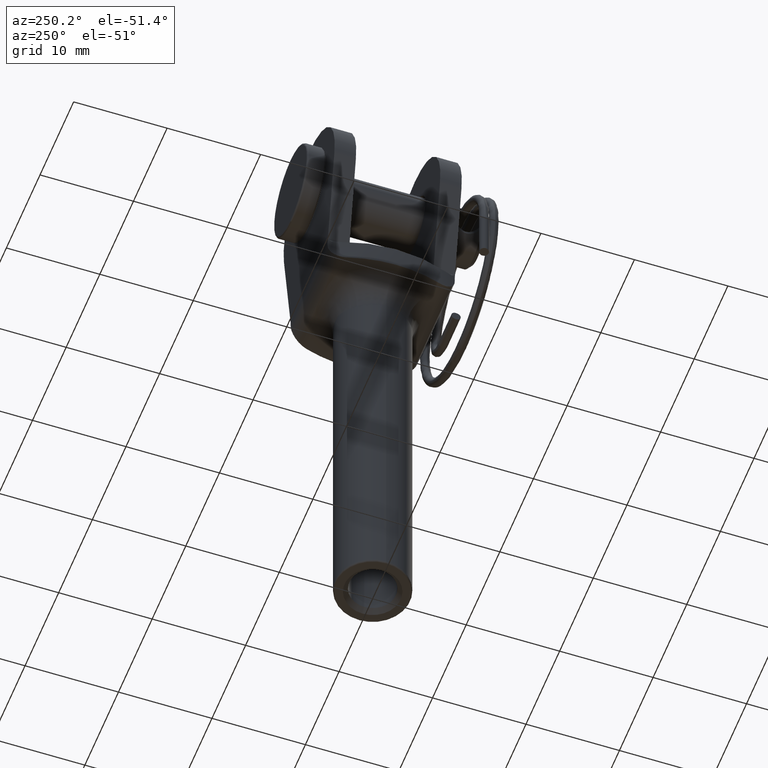
[diagram: clean part render]
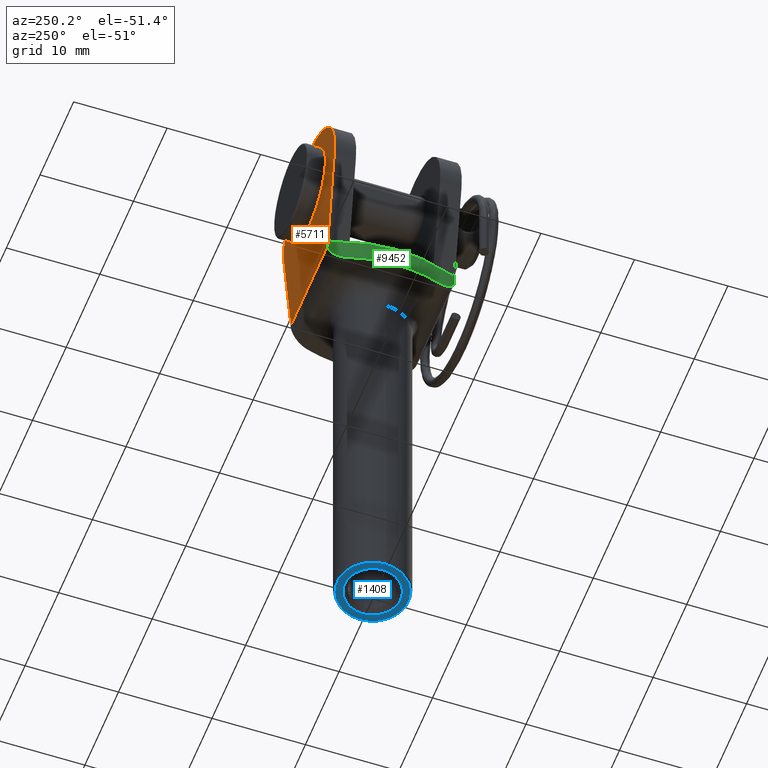
[diagram: same view with three faces highlighted in distinct colors, each labeled with its STEP entity id]
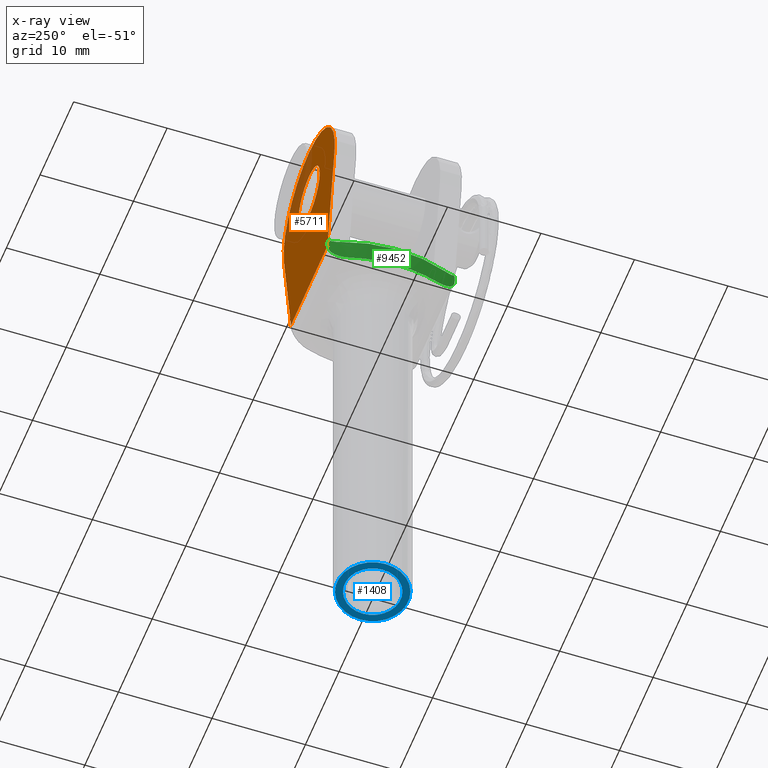
[diagram: x-ray of the same camera — body ghosted, the three highlighted faces saturated]
A machine part, auxiliary view with three faces highlighted in distinct colors.
The next image is the same camera in x-ray (body ghosted, the three faces saturated) — at least one of them is partly hidden behind the body in this view.
Their STEP definitions:

[orange] entity #5711 — the highlighted planar face has unit normal (0, -1, 0).
#85 = CARTESIAN_POINT ( 'NONE',  ( 5.500000000000000000, 6.799999999999999800, 9.302536199233404900E-016 ) ) ;
#111 = DIRECTION ( 'NONE',  ( 1.224646799147353200E-016, -0.0000000000000000000, 1.000000000000000000 ) ) ;
#608 = CARTESIAN_POINT ( 'NONE',  ( -7.499999999999998200, 6.799999999999999800, 12.16643967593877400 ) ) ;
#678 = EDGE_CURVE ( 'NONE', #9976, #17297, #2842, .T. ) ;
#774 = FACE_OUTER_BOUND ( 'NONE', #4033, .T. ) ;
#1115 = CIRCLE ( 'NONE', #6730, 3.150000000000001700 ) ;
#1591 = ORIENTED_EDGE ( 'NONE', *, *, #7113, .T. ) ;
#1632 = ORIENTED_EDGE ( 'NONE', *, *, #9719, .T. ) ;
#2357 = VECTOR ( 'NONE', #10010, 1000.000000000000000 ) ;
#2842 = CIRCLE ( 'NONE', #13932, 7.600660609803401100 ) ;
#3058 = DIRECTION ( 'NONE',  ( 0.0000000000000000000, 0.0000000000000000000, 1.000000000000000000 ) ) ;
#3175 = DIRECTION ( 'NONE',  ( 0.0000000000000000000, 0.0000000000000000000, -1.000000000000000000 ) ) ;
#3180 = AXIS2_PLACEMENT_3D ( 'NONE', #7754, #8223, #17084 ) ;
#3325 = CARTESIAN_POINT ( 'NONE',  ( 5.500000000000000000, 6.799999999999999800, -0.5000000000000004400 ) ) ;
#3711 = EDGE_CURVE ( 'NONE', #17297, #15101, #15757, .T. ) ;
#4033 = EDGE_LOOP ( 'NONE', ( #14291, #11796, #1591, #1632, #19260, #9233 ) ) ;
#4353 = CARTESIAN_POINT ( 'NONE',  ( -5.500000000000000000, 6.799999999999999800, -2.499999999999999100 ) ) ;
#4530 = ORIENTED_EDGE ( 'NONE', *, *, #13428, .F. ) ;
#4532 = CARTESIAN_POINT ( 'NONE',  ( 5.500000000000000000, 6.799999999999999800, -2.500000000000000900 ) ) ;
#4710 = CARTESIAN_POINT ( 'NONE',  ( -5.500000000000000000, 6.799999999999999800, 1.669015115172641200E-015 ) ) ;
#4832 = CARTESIAN_POINT ( 'NONE',  ( 0.0000000000000000000, 6.799999999999999800, 17.15000000000000200 ) ) ;
#5711 = ADVANCED_FACE ( 'NONE', ( #8937, #774 ), #11133, .F. ) ;
#6163 = CARTESIAN_POINT ( 'NONE',  ( 6.664858939403750700E-016, 6.799999999999999800, 13.39933939019659600 ) ) ;
#6193 = LINE ( 'NONE', #8543, #2357 ) ;
#6214 = CARTESIAN_POINT ( 'NONE',  ( -7.499999999999999100, 6.799999999999999800, 12.16643967593877200 ) ) ;
#6446 = VERTEX_POINT ( 'NONE', #19212 ) ;
#6699 = DIRECTION ( 'NONE',  ( 0.0000000000000000000, -1.000000000000000000, 0.0000000000000000000 ) ) ;
#6730 = AXIS2_PLACEMENT_3D ( 'NONE', #10485, #19655, #3058 ) ;
#6803 = DIRECTION ( 'NONE',  ( -0.1622095469790641200, -0.0000000000000000000, -0.9867563340910696600 ) ) ;
#6815 = CIRCLE ( 'NONE', #3180, 3.150000000000001700 ) ;
#7025 = EDGE_CURVE ( 'NONE', #18683, #6446, #6193, .T. ) ;
#7113 = EDGE_CURVE ( 'NONE', #6446, #8785, #9790, .T. ) ;
#7754 = CARTESIAN_POINT ( 'NONE',  ( 0.0000000000000000000, 6.799999999999999800, 14.00000000000000000 ) ) ;
#7782 = DIRECTION ( 'NONE',  ( 0.0000000000000000000, 1.000000000000000000, -0.0000000000000000000 ) ) ;
#7886 = VECTOR ( 'NONE', #111, 1000.000000000000000 ) ;
#8223 = DIRECTION ( 'NONE',  ( 0.0000000000000000000, 1.000000000000000000, 0.0000000000000000000 ) ) ;
#8543 = CARTESIAN_POINT ( 'NONE',  ( -5.500000000000000000, 6.799999999999999800, -0.4999999999999991700 ) ) ;
#8738 = EDGE_CURVE ( 'NONE', #18683, #15101, #16424, .T. ) ;
#8785 = VERTEX_POINT ( 'NONE', #4710 ) ;
#8937 = FACE_BOUND ( 'NONE', #14331, .T. ) ;
#9233 = ORIENTED_EDGE ( 'NONE', *, *, #3711, .T. ) ;
#9719 = EDGE_CURVE ( 'NONE', #8785, #9976, #15915, .T. ) ;
#9790 = LINE ( 'NONE', #4353, #14054 ) ;
#9976 = VERTEX_POINT ( 'NONE', #608 ) ;
#10010 = DIRECTION ( 'NONE',  ( -1.000000000000000000, -0.0000000000000000000, 1.224646799147353200E-016 ) ) ;
#10485 = CARTESIAN_POINT ( 'NONE',  ( 0.0000000000000000000, 6.799999999999999800, 14.00000000000000000 ) ) ;
#10848 = DIRECTION ( 'NONE',  ( -0.1622095469790640300, -0.0000000000000000000, 0.9867563340910696600 ) ) ;
#11133 = PLANE ( 'NONE',  #13605 ) ;
#11796 = ORIENTED_EDGE ( 'NONE', *, *, #7025, .T. ) ;
#12909 = DIRECTION ( 'NONE',  ( 0.0000000000000000000, -0.0000000000000000000, -1.000000000000000000 ) ) ;
#13163 = CARTESIAN_POINT ( 'NONE',  ( 3.857637417314164200E-016, 6.799999999999999800, 10.84999999999999800 ) ) ;
#13428 = EDGE_CURVE ( 'NONE', #16685, #19321, #1115, .T. ) ;
#13605 = AXIS2_PLACEMENT_3D ( 'NONE', #14156, #6699, #12909 ) ;
#13932 = AXIS2_PLACEMENT_3D ( 'NONE', #6163, #7782, #3175 ) ;
#14054 = VECTOR ( 'NONE', #19457, 1000.000000000000000 ) ;
#14156 = CARTESIAN_POINT ( 'NONE',  ( 6.664858939403750700E-016, 6.799999999999999800, 13.39933939019659600 ) ) ;
#14197 = ORIENTED_EDGE ( 'NONE', *, *, #15117, .F. ) ;
#14289 = CARTESIAN_POINT ( 'NONE',  ( 7.500000000000000000, 6.799999999999999800, 12.16643967593877200 ) ) ;
#14291 = ORIENTED_EDGE ( 'NONE', *, *, #8738, .F. ) ;
#14331 = EDGE_LOOP ( 'NONE', ( #4530, #14197 ) ) ;
#15101 = VERTEX_POINT ( 'NONE', #85 ) ;
#15117 = EDGE_CURVE ( 'NONE', #19321, #16685, #6815, .T. ) ;
#15757 = LINE ( 'NONE', #19003, #17395 ) ;
#15915 = LINE ( 'NONE', #6214, #18988 ) ;
#16424 = LINE ( 'NONE', #4532, #7886 ) ;
#16685 = VERTEX_POINT ( 'NONE', #4832 ) ;
#17084 = DIRECTION ( 'NONE',  ( 0.0000000000000000000, 0.0000000000000000000, 1.000000000000000000 ) ) ;
#17297 = VERTEX_POINT ( 'NONE', #14289 ) ;
#17395 = VECTOR ( 'NONE', #6803, 1000.000000000000200 ) ;
#18683 = VERTEX_POINT ( 'NONE', #3325 ) ;
#18988 = VECTOR ( 'NONE', #10848, 1000.000000000000200 ) ;
#19003 = CARTESIAN_POINT ( 'NONE',  ( 5.500000000000000000, 6.799999999999999800, 9.302536199233404900E-016 ) ) ;
#19212 = CARTESIAN_POINT ( 'NONE',  ( -5.500000000000000000, 6.799999999999999800, -0.4999999999999991700 ) ) ;
#19260 = ORIENTED_EDGE ( 'NONE', *, *, #678, .T. ) ;
#19321 = VERTEX_POINT ( 'NONE', #13163 ) ;
#19457 = DIRECTION ( 'NONE',  ( 1.224646799147353200E-016, -0.0000000000000000000, 1.000000000000000000 ) ) ;
#19655 = DIRECTION ( 'NONE',  ( 0.0000000000000000000, 1.000000000000000000, 0.0000000000000000000 ) ) ;

[blue] entity #1408 — the highlighted planar face has unit normal (0, 0, 1).
#513 = EDGE_CURVE ( 'NONE', #18814, #13397, #14027, .T. ) ;
#735 = DIRECTION ( 'NONE',  ( 1.000000000000000000, 0.0000000000000000000, 0.0000000000000000000 ) ) ;
#1408 = ADVANCED_FACE ( 'NONE', ( #6377, #6858 ), #5970, .F. ) ;
#1491 = CIRCLE ( 'NONE', #15092, 2.999999999999995600 ) ;
#2223 = CIRCLE ( 'NONE', #4484, 2.999999999999995600 ) ;
#3683 = EDGE_CURVE ( 'NONE', #8494, #8671, #1491, .T. ) ;
#4484 = AXIS2_PLACEMENT_3D ( 'NONE', #11792, #5562, #19218 ) ;
#5179 = ORIENTED_EDGE ( 'NONE', *, *, #513, .T. ) ;
#5414 = CARTESIAN_POINT ( 'NONE',  ( 0.0000000000000000000, 0.0000000000000000000, -47.00000000000000000 ) ) ;
#5562 = DIRECTION ( 'NONE',  ( 0.0000000000000000000, 0.0000000000000000000, 1.000000000000000000 ) ) ;
#5830 = DIRECTION ( 'NONE',  ( -0.0000000000000000000, -0.0000000000000000000, -1.000000000000000000 ) ) ;
#5970 = PLANE ( 'NONE',  #9906 ) ;
#6377 = FACE_OUTER_BOUND ( 'NONE', #18337, .T. ) ;
#6858 = FACE_BOUND ( 'NONE', #19396, .T. ) ;
#8494 = VERTEX_POINT ( 'NONE', #12979 ) ;
#8671 = VERTEX_POINT ( 'NONE', #18114 ) ;
#9200 = CARTESIAN_POINT ( 'NONE',  ( 0.0000000000000000000, 0.0000000000000000000, -47.00000000000000000 ) ) ;
#9860 = AXIS2_PLACEMENT_3D ( 'NONE', #19110, #16132, #17717 ) ;
#9906 = AXIS2_PLACEMENT_3D ( 'NONE', #9200, #19710, #10728 ) ;
#10728 = DIRECTION ( 'NONE',  ( 1.000000000000000000, 0.0000000000000000000, -0.0000000000000000000 ) ) ;
#11376 = ORIENTED_EDGE ( 'NONE', *, *, #19522, .T. ) ;
#11792 = CARTESIAN_POINT ( 'NONE',  ( 0.0000000000000000000, 0.0000000000000000000, -47.00000000000000000 ) ) ;
#11798 = CARTESIAN_POINT ( 'NONE',  ( 0.0000000000000000000, 0.0000000000000000000, -47.00000000000000000 ) ) ;
#12542 = ORIENTED_EDGE ( 'NONE', *, *, #3683, .T. ) ;
#12973 = ORIENTED_EDGE ( 'NONE', *, *, #17016, .T. ) ;
#12979 = CARTESIAN_POINT ( 'NONE',  ( -2.999999999999995600, 0.0000000000000000000, -47.00000000000000000 ) ) ;
#13397 = VERTEX_POINT ( 'NONE', #19390 ) ;
#13446 = CIRCLE ( 'NONE', #17186, 3.799999999999999800 ) ;
#14027 = CIRCLE ( 'NONE', #9860, 3.799999999999999800 ) ;
#15092 = AXIS2_PLACEMENT_3D ( 'NONE', #5414, #17476, #735 ) ;
#15599 = CARTESIAN_POINT ( 'NONE',  ( 3.799999999999999800, 0.0000000000000000000, -47.00000000000000000 ) ) ;
#16132 = DIRECTION ( 'NONE',  ( -0.0000000000000000000, -0.0000000000000000000, -1.000000000000000000 ) ) ;
#17016 = EDGE_CURVE ( 'NONE', #8671, #8494, #2223, .T. ) ;
#17186 = AXIS2_PLACEMENT_3D ( 'NONE', #11798, #5830, #17968 ) ;
#17476 = DIRECTION ( 'NONE',  ( 0.0000000000000000000, 0.0000000000000000000, 1.000000000000000000 ) ) ;
#17717 = DIRECTION ( 'NONE',  ( 1.000000000000000000, 0.0000000000000000000, 0.0000000000000000000 ) ) ;
#17968 = DIRECTION ( 'NONE',  ( 1.000000000000000000, 0.0000000000000000000, 0.0000000000000000000 ) ) ;
#18114 = CARTESIAN_POINT ( 'NONE',  ( 2.999999999999995600, 3.673940397442054400E-016, -47.00000000000000000 ) ) ;
#18337 = EDGE_LOOP ( 'NONE', ( #5179, #11376 ) ) ;
#18814 = VERTEX_POINT ( 'NONE', #15599 ) ;
#19110 = CARTESIAN_POINT ( 'NONE',  ( 0.0000000000000000000, 0.0000000000000000000, -47.00000000000000000 ) ) ;
#19218 = DIRECTION ( 'NONE',  ( 1.000000000000000000, 0.0000000000000000000, 0.0000000000000000000 ) ) ;
#19390 = CARTESIAN_POINT ( 'NONE',  ( -3.799999999999999800, 4.776122516674677300E-016, -47.00000000000000000 ) ) ;
#19396 = EDGE_LOOP ( 'NONE', ( #12542, #12973 ) ) ;
#19522 = EDGE_CURVE ( 'NONE', #13397, #18814, #13446, .T. ) ;
#19710 = DIRECTION ( 'NONE',  ( 0.0000000000000000000, 0.0000000000000000000, 1.000000000000000000 ) ) ;

[green] entity #9452 — the highlighted cylindrical surface (partial cylindrical patch) has radius 16.1633 mm, axis along (0, 0, 1).
#126 = ORIENTED_EDGE ( 'NONE', *, *, #4860, .F. ) ;
#167 = CARTESIAN_POINT ( 'NONE',  ( -5.661240991337306700, -6.441504599590381900, 0.1376213993627340700 ) ) ;
#195 = AXIS2_PLACEMENT_3D ( 'NONE', #11029, #719, #18918 ) ;
#539 = DIRECTION ( 'NONE',  ( -1.224646799147353200E-016, 0.0000000000000000000, -1.000000000000000000 ) ) ;
#576 = CARTESIAN_POINT ( 'NONE',  ( -5.500000000000005300, -6.799999999999994500, -0.4999999999999991700 ) ) ;
#606 = CARTESIAN_POINT ( 'NONE',  ( -6.270828271510788800, -4.799999999999999800, -2.499999999999999600 ) ) ;
#719 = DIRECTION ( 'NONE',  ( 1.224646799147353200E-016, -0.0000000000000000000, 1.000000000000000000 ) ) ;
#990 = CARTESIAN_POINT ( 'NONE',  ( -5.506454266958036700, 6.786129981864314200, -0.7707668760613886100 ) ) ;
#1054 = CARTESIAN_POINT ( 'NONE',  ( -5.929606828620110900, 5.785319631850808400, -2.245205092835800700 ) ) ;
#1149 = CARTESIAN_POINT ( 'NONE',  ( -5.525790645690828600, -6.744385759610808300, 0.1568901675004881800 ) ) ;
#1385 = CARTESIAN_POINT ( 'NONE',  ( -5.701130824002410300, 6.349132850317459100, 0.1009281616893361000 ) ) ;
#1436 = CARTESIAN_POINT ( 'NONE',  ( -6.270828271510788800, -4.799999999999999800, -2.499999999999999600 ) ) ;
#1445 = EDGE_LOOP ( 'NONE', ( #126, #14318, #6673, #18696, #18878, #14119, #16358, #10342, #12451, #3363, #5268 ) ) ;
#1522 = CARTESIAN_POINT ( 'NONE',  ( -5.500000000000000000, 6.799999999999999800, 1.669015115172641200E-015 ) ) ;
#1841 = AXIS2_PLACEMENT_3D ( 'NONE', #17441, #2501, #19171 ) ;
#2196 = CARTESIAN_POINT ( 'NONE',  ( -5.576420683646837500, -6.632721610572944300, 0.4648838187916264400 ) ) ;
#2501 = DIRECTION ( 'NONE',  ( -1.224646799147353200E-016, 0.0000000000000000000, -1.000000000000000000 ) ) ;
#2590 = CARTESIAN_POINT ( 'NONE',  ( -6.103288368573823100, 5.310490322509148000, -2.438011619825469100 ) ) ;
#2752 = CARTESIAN_POINT ( 'NONE',  ( -5.576420683646837500, 6.632721610572945200, 0.4648838187916266600 ) ) ;
#2907 = CARTESIAN_POINT ( 'NONE',  ( -5.597446878727041100, -6.586046377219133800, -1.409780298278506800 ) ) ;
#2972 = CARTESIAN_POINT ( 'NONE',  ( -5.550296741032692400, -6.690719646371833000, -1.165463050467034500 ) ) ;
#3035 = CARTESIAN_POINT ( 'NONE',  ( -5.804221061231682900, -6.102114525875624200, -2.023597663890488900 ) ) ;
#3120 = CARTESIAN_POINT ( 'NONE',  ( -5.971123217283264700, 5.674642663810896400, 7.312516935360396100E-016 ) ) ;
#3363 = ORIENTED_EDGE ( 'NONE', *, *, #9644, .T. ) ;
#3622 = B_SPLINE_CURVE_WITH_KNOTS ( 'NONE', 3,
 ( #15201, #6095, #10788, #12385, #9133, #167, #12258, #4659, #10851, #7778 ),
 .UNSPECIFIED., .F., .F.,
 ( 4, 2, 2, 2, 4 ),
 ( 0.0000000000000000000, 0.0001592206730407353200, 0.0003184413460814706500, 0.0006368826921629404300, 0.001273765384325881100 ),
 .UNSPECIFIED. ) ;
#3818 = FACE_OUTER_BOUND ( 'NONE', #1445, .T. ) ;
#3921 = CARTESIAN_POINT ( 'NONE',  ( -5.576420683646837500, -6.632721610572944300, 0.4648838187916264400 ) ) ;
#4121 = VERTEX_POINT ( 'NONE', #8335 ) ;
#4163 = CARTESIAN_POINT ( 'NONE',  ( -5.845127397129784800, 6.001072610553222800, -2.104375323030584600 ) ) ;
#4226 = CARTESIAN_POINT ( 'NONE',  ( -6.270828271510788800, 4.799999999999999800, -2.499999999999999600 ) ) ;
#4353 = CARTESIAN_POINT ( 'NONE',  ( -5.500000000000000000, 6.799999999999999800, -2.499999999999999100 ) ) ;
#4525 = CARTESIAN_POINT ( 'NONE',  ( -5.531875993464817400, -6.730904792842038900, -1.038387491443644200 ) ) ;
#4652 = EDGE_CURVE ( 'NONE', #18938, #8945, #6948, .T. ) ;
#4659 = CARTESIAN_POINT ( 'NONE',  ( -5.818860054575057300, -6.068632316323083300, 0.01785580186137510100 ) ) ;
#4710 = CARTESIAN_POINT ( 'NONE',  ( -5.500000000000000000, 6.799999999999999800, 1.669015115172641200E-015 ) ) ;
#4860 = EDGE_CURVE ( 'NONE', #13074, #5758, #10070, .T. ) ;
#5268 = ORIENTED_EDGE ( 'NONE', *, *, #14441, .F. ) ;
#5288 = CARTESIAN_POINT ( 'NONE',  ( -5.551264481731514900, -6.688625694899695200, 0.3118531122523803300 ) ) ;
#5610 = B_SPLINE_CURVE_WITH_KNOTS ( 'NONE', 3,
 ( #7263, #8615, #990, #11697, #17730, #10285, #13198, #7129, #4163, #1054, #11768, #16079, #2590, #11833, #14770, #4226 ),
 .UNSPECIFIED., .F., .F.,
 ( 4, 2, 2, 2, 2, 2, 2, 4 ),
 ( 0.0000000000000000000, 0.0004040290397003314300, 0.0008080580794006628600, 0.001616116158801327200, 0.002020145198501659200, 0.002424174238201991400, 0.002828203277902323600, 0.003232232317602655800 ),
 .UNSPECIFIED. ) ;
#5737 = CIRCLE ( 'NONE', #1841, 16.16333333333333400 ) ;
#5758 = VERTEX_POINT ( 'NONE', #15797 ) ;
#5903 = CARTESIAN_POINT ( 'NONE',  ( -6.189665122468893400, -5.060976074723054600, -2.499999999999998700 ) ) ;
#6024 = CARTESIAN_POINT ( 'NONE',  ( -5.506621018243748700, -6.785771570821108200, -0.7737986093500258700 ) ) ;
#6025 = EDGE_CURVE ( 'NONE', #13074, #18938, #11769, .T. ) ;
#6095 = CARTESIAN_POINT ( 'NONE',  ( -5.568214501775413400, -6.650958031352403500, 0.4149638104373898900 ) ) ;
#6167 = CARTESIAN_POINT ( 'NONE',  ( -5.896998564880074200, 5.872335522654678300, 5.221958119822759600E-016 ) ) ;
#6446 = VERTEX_POINT ( 'NONE', #19212 ) ;
#6673 = ORIENTED_EDGE ( 'NONE', *, *, #4652, .T. ) ;
#6712 = VECTOR ( 'NONE', #16289, 1000.000000000000000 ) ;
#6948 = LINE ( 'NONE', #13330, #6712 ) ;
#7113 = EDGE_CURVE ( 'NONE', #6446, #8785, #9790, .T. ) ;
#7129 = CARTESIAN_POINT ( 'NONE',  ( -5.803841231624975400, 6.103039098184116700, -2.022764127728089400 ) ) ;
#7263 = CARTESIAN_POINT ( 'NONE',  ( -5.500000000000000000, 6.799999999999999800, -0.4999999999999991700 ) ) ;
#7457 = CARTESIAN_POINT ( 'NONE',  ( -5.660983749566294200, 6.442088916252581400, 0.1380410730800911700 ) ) ;
#7778 = CARTESIAN_POINT ( 'NONE',  ( -5.971123217283264700, -5.674642663810896400, 7.312516935360396100E-016 ) ) ;
#8188 = EDGE_CURVE ( 'NONE', #8785, #17011, #9417, .T. ) ;
#8335 = CARTESIAN_POINT ( 'NONE',  ( -6.270828271510788800, 4.799999999999999800, -2.499999999999999600 ) ) ;
#8530 = EDGE_CURVE ( 'NONE', #19331, #15500, #5737, .T. ) ;
#8615 = CARTESIAN_POINT ( 'NONE',  ( -5.499999999999998200, 6.799999999999998900, -0.6367215194611487400 ) ) ;
#8785 = VERTEX_POINT ( 'NONE', #4710 ) ;
#8945 = VERTEX_POINT ( 'NONE', #12642 ) ;
#9031 = CARTESIAN_POINT ( 'NONE',  ( -5.525790645690824100, 6.744385759610817200, 0.1568901675004598400 ) ) ;
#9085 = CARTESIAN_POINT ( 'NONE',  ( -5.570598783439397300, 6.645693970365271300, 0.3573038560065467400 ) ) ;
#9127 = CARTESIAN_POINT ( 'NONE',  ( -5.972692975612575900, -5.671877893477922200, -2.304555092749693400 ) ) ;
#9133 = CARTESIAN_POINT ( 'NONE',  ( -5.608337886308698100, -6.561477277693618300, 0.2279413337344764500 ) ) ;
#9417 =( BOUNDED_CURVE ( )  B_SPLINE_CURVE ( 3, ( #1522, #9031, #10559, #19187 ),
 .UNSPECIFIED., .F., .T. ) 
 B_SPLINE_CURVE_WITH_KNOTS ( ( 4, 4 ),
 ( 5.848962677709775600, 5.860340842372451700 ),
 .UNSPECIFIED. ) 
 CURVE ( )  GEOMETRIC_REPRESENTATION_ITEM ( )  RATIONAL_B_SPLINE_CURVE ( ( 1.000000000000000000, 0.9999892114765073200, 0.9999892114765073200, 1.000000000000000000 ) ) 
 REPRESENTATION_ITEM ( '' )  );
#9452 = ADVANCED_FACE ( 'NONE', ( #3818 ), #17826, .T. ) ;
#9478 = DIRECTION ( 'NONE',  ( -1.224646799147353200E-016, 0.0000000000000000000, -1.000000000000000000 ) ) ;
#9644 = EDGE_CURVE ( 'NONE', #6446, #4121, #5610, .T. ) ;
#9790 = LINE ( 'NONE', #4353, #14054 ) ;
#10070 = CIRCLE ( 'NONE', #14078, 16.16333333333333400 ) ;
#10195 = CIRCLE ( 'NONE', #14774, 16.16333333333333400 ) ;
#10285 = CARTESIAN_POINT ( 'NONE',  ( -5.620804586230580200, 6.534201684399670600, -1.531216287057567200 ) ) ;
#10342 = ORIENTED_EDGE ( 'NONE', *, *, #8188, .F. ) ;
#10397 = CARTESIAN_POINT ( 'NONE',  ( -5.727022900698354800, -6.288145789085875800, -1.842488059661920400 ) ) ;
#10559 = CARTESIAN_POINT ( 'NONE',  ( -5.551264481731512200, 6.688625694899698700, 0.3118531122523676700 ) ) ;
#10590 = CARTESIAN_POINT ( 'NONE',  ( -5.929687174943035500, -5.785097762572593000, -2.245277408088416100 ) ) ;
#10656 = CARTESIAN_POINT ( 'NONE',  ( -5.845666440632948400, -5.999712490682663100, -2.105335096703909900 ) ) ;
#10788 = CARTESIAN_POINT ( 'NONE',  ( -5.570573594235734800, -6.645750302331988400, 0.3573516017119391900 ) ) ;
#10851 = CARTESIAN_POINT ( 'NONE',  ( -5.897024193869315300, -5.872267169306789800, -9.943225653046309500E-016 ) ) ;
#11029 = CARTESIAN_POINT ( 'NONE',  ( 9.163333333333330400, 0.0000000000000000000, -2.500000000000001300 ) ) ;
#11697 = CARTESIAN_POINT ( 'NONE',  ( -5.531319750209699600, 6.732116986709263200, -1.033807976431500700 ) ) ;
#11768 = CARTESIAN_POINT ( 'NONE',  ( -5.972586385756251600, 5.672141861841254200, -2.304363413801326900 ) ) ;
#11769 = B_SPLINE_CURVE_WITH_KNOTS ( 'NONE', 3,
 ( #1436, #5903, #13436, #9127, #10590, #10656, #3035, #10397, #19571, #17916, #2907, #2972, #4525, #6024, #13570, #16659 ),
 .UNSPECIFIED., .F., .F.,
 ( 4, 2, 2, 2, 2, 2, 2, 4 ),
 ( 0.0000000000000000000, 0.0008081219249476345100, 0.001212182887421451900, 0.001616243849895269000, 0.002020304812369086200, 0.002424365774842903800, 0.002828426737316720900, 0.003232487699790538100 ),
 .UNSPECIFIED. ) ;
#11827 = EDGE_CURVE ( 'NONE', #15500, #17011, #15126, .T. ) ;
#11833 = CARTESIAN_POINT ( 'NONE',  ( -6.188638711574400400, 5.058458261859762200, -2.487382382640659800 ) ) ;
#12258 = CARTESIAN_POINT ( 'NONE',  ( -5.701208440233089400, -6.348937739581624700, 0.1009171053835036500 ) ) ;
#12385 = CARTESIAN_POINT ( 'NONE',  ( -5.591719911541019000, -6.598667605822885900, 0.2646780949294924000 ) ) ;
#12451 = ORIENTED_EDGE ( 'NONE', *, *, #7113, .F. ) ;
#12642 = CARTESIAN_POINT ( 'NONE',  ( -5.500000000000005300, -6.799999999999994500, 6.735557395310448900E-016 ) ) ;
#12797 = DIRECTION ( 'NONE',  ( 1.000000000000000000, 0.0000000000000000000, -1.341557647950717000E-016 ) ) ;
#13074 = VERTEX_POINT ( 'NONE', #606 ) ;
#13198 = CARTESIAN_POINT ( 'NONE',  ( -5.688523552338964800, 6.380902481763110100, -1.752051621748523400 ) ) ;
#13330 = CARTESIAN_POINT ( 'NONE',  ( -5.500000000000005300, -6.799999999999994500, -2.499999999999999100 ) ) ;
#13436 = CARTESIAN_POINT ( 'NONE',  ( -6.103649030027285400, -5.313866881848587900, -2.449949077118789300 ) ) ;
#13570 = CARTESIAN_POINT ( 'NONE',  ( -5.500000000000001800, -6.800000000000000700, -0.6369209404193630900 ) ) ;
#13713 = CARTESIAN_POINT ( 'NONE',  ( -5.591642448508560300, 6.598840325896317100, 0.2649550854418402700 ) ) ;
#14054 = VECTOR ( 'NONE', #19457, 1000.000000000000000 ) ;
#14078 = AXIS2_PLACEMENT_3D ( 'NONE', #14172, #9478, #12797 ) ;
#14119 = ORIENTED_EDGE ( 'NONE', *, *, #8530, .T. ) ;
#14122 = CARTESIAN_POINT ( 'NONE',  ( 9.163333333333330400, 0.0000000000000000000, -2.500000000000001300 ) ) ;
#14172 = CARTESIAN_POINT ( 'NONE',  ( 9.163333333333330400, 0.0000000000000000000, -2.500000000000001300 ) ) ;
#14210 =( BOUNDED_CURVE ( )  B_SPLINE_CURVE ( 3, ( #2196, #5288, #1149, #19150 ),
 .UNSPECIFIED., .F., .T. ) 
 B_SPLINE_CURVE_WITH_KNOTS ( ( 4, 4 ),
 ( 0.4228444648071348300, 0.4342226294698099400 ),
 .UNSPECIFIED. ) 
 CURVE ( )  GEOMETRIC_REPRESENTATION_ITEM ( )  RATIONAL_B_SPLINE_CURVE ( ( 1.000000000000000000, 0.9999892114765073200, 0.9999892114765073200, 1.000000000000000000 ) ) 
 REPRESENTATION_ITEM ( '' )  );
#14301 = VERTEX_POINT ( 'NONE', #3921 ) ;
#14318 = ORIENTED_EDGE ( 'NONE', *, *, #6025, .T. ) ;
#14441 = EDGE_CURVE ( 'NONE', #5758, #4121, #10195, .T. ) ;
#14657 = CARTESIAN_POINT ( 'NONE',  ( -5.971123217283264700, 5.674642663810896400, 7.312516935360396100E-016 ) ) ;
#14770 = CARTESIAN_POINT ( 'NONE',  ( -6.230293372347641200, 4.930337955066671700, -2.499999999999999600 ) ) ;
#14774 = AXIS2_PLACEMENT_3D ( 'NONE', #14122, #539, #17143 ) ;
#15021 = CARTESIAN_POINT ( 'NONE',  ( -5.819741858829914300, 6.066510940849473100, 0.01732113735797577100 ) ) ;
#15126 = B_SPLINE_CURVE_WITH_KNOTS ( 'NONE', 3,
 ( #3120, #6167, #15021, #1385, #7457, #16545, #13713, #9085, #16675, #19588 ),
 .UNSPECIFIED., .F., .F.,
 ( 4, 2, 2, 2, 4 ),
 ( 3.849529938958916700E-020, 0.0006286226459653518600, 0.0009429339689480267100, 0.001100089630439363500, 0.001257245291930700500 ),
 .UNSPECIFIED. ) ;
#15201 = CARTESIAN_POINT ( 'NONE',  ( -5.576420683646837500, -6.632721610572944300, 0.4648838187916264400 ) ) ;
#15500 = VERTEX_POINT ( 'NONE', #14657 ) ;
#15797 = CARTESIAN_POINT ( 'NONE',  ( -7.000000000000000900, 0.0000000000000000000, -2.499999999999999100 ) ) ;
#16079 = CARTESIAN_POINT ( 'NONE',  ( -6.059277969271565000, 5.435196792516580700, -2.400758740876219700 ) ) ;
#16289 = DIRECTION ( 'NONE',  ( 1.224646799147353200E-016, -0.0000000000000000000, 1.000000000000000000 ) ) ;
#16358 = ORIENTED_EDGE ( 'NONE', *, *, #11827, .T. ) ;
#16545 = CARTESIAN_POINT ( 'NONE',  ( -5.608423380143254800, 6.561282921502945300, 0.2278051384453956800 ) ) ;
#16630 = EDGE_CURVE ( 'NONE', #14301, #19331, #3622, .T. ) ;
#16659 = CARTESIAN_POINT ( 'NONE',  ( -5.500000000000005300, -6.799999999999994500, -0.4999999999999991700 ) ) ;
#16675 = CARTESIAN_POINT ( 'NONE',  ( -5.568215427535435000, 6.650955974056923700, 0.4149694420401689500 ) ) ;
#16873 = EDGE_CURVE ( 'NONE', #14301, #8945, #14210, .T. ) ;
#17011 = VERTEX_POINT ( 'NONE', #2752 ) ;
#17143 = DIRECTION ( 'NONE',  ( 1.000000000000000000, 0.0000000000000000000, -1.341557647950717000E-016 ) ) ;
#17441 = CARTESIAN_POINT ( 'NONE',  ( 9.163333333333330400, 0.0000000000000000000, -1.122184683618691100E-015 ) ) ;
#17730 = CARTESIAN_POINT ( 'NONE',  ( -5.550069783986940800, 6.691218757434112000, -1.164083759586264500 ) ) ;
#17826 = CYLINDRICAL_SURFACE ( 'NONE', #195, 16.16333333333333400 ) ;
#17916 = CARTESIAN_POINT ( 'NONE',  ( -5.626552839001296200, -6.520674012471509700, -1.527831597718688500 ) ) ;
#18696 = ORIENTED_EDGE ( 'NONE', *, *, #16873, .F. ) ;
#18743 = CARTESIAN_POINT ( 'NONE',  ( -5.971123217283264700, -5.674642663810896400, 7.312516935360396100E-016 ) ) ;
#18878 = ORIENTED_EDGE ( 'NONE', *, *, #16630, .T. ) ;
#18918 = DIRECTION ( 'NONE',  ( 1.000000000000000000, 0.0000000000000000000, -1.341557647950717000E-016 ) ) ;
#18938 = VERTEX_POINT ( 'NONE', #576 ) ;
#19150 = CARTESIAN_POINT ( 'NONE',  ( -5.500000000000005300, -6.799999999999994500, 6.735557395310448900E-016 ) ) ;
#19171 = DIRECTION ( 'NONE',  ( 1.000000000000000000, 0.0000000000000000000, -1.224646799147353000E-016 ) ) ;
#19187 = CARTESIAN_POINT ( 'NONE',  ( -5.576420683646837500, 6.632721610572945200, 0.4648838187916266600 ) ) ;
#19212 = CARTESIAN_POINT ( 'NONE',  ( -5.500000000000000000, 6.799999999999999800, -0.4999999999999991700 ) ) ;
#19331 = VERTEX_POINT ( 'NONE', #18743 ) ;
#19457 = DIRECTION ( 'NONE',  ( 1.224646799147353200E-016, -0.0000000000000000000, 1.000000000000000000 ) ) ;
#19571 = CARTESIAN_POINT ( 'NONE',  ( -5.691246307039834900, -6.371921709762869300, -1.743470542007301600 ) ) ;
#19588 = CARTESIAN_POINT ( 'NONE',  ( -5.576420683646837500, 6.632721610572945200, 0.4648838187916266600 ) ) ;